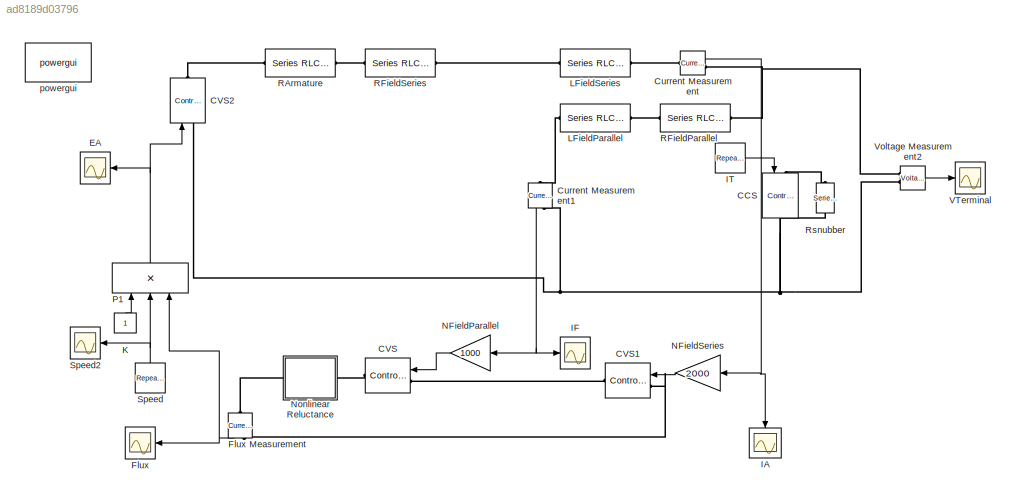
MODEL slx_ad8189d03796
KIND model
BLOCK [Reference] CCS  REF=powerlib/Electrical
Sources/Controlled Current Source
  Amplitude = 0
  Frequency = 0
  Initialize = off
  Measurements = None
  Phase = 0
  Ports = [1, 0, 0, 0, 0, 1, 1]
  SourceBlock = powerlib/Electrical\nSources/Controlled Current Source
  SourceType = Controlled Current Source
  Source_Type = AC
BLOCK [Reference] CVS  REF=powerlib/Electrical
Sources/Controlled Voltage Source
  Amplitude = 50
  Frequency = 0
  Initialize = on
  Measurements = None
  Phase = 0
  Ports = [1, 0, 0, 0, 0, 1, 1]
  SourceBlock = powerlib/Electrical\nSources/Controlled Voltage Source
  SourceType = Controlled Voltage Source
  Source_Type = DC
BLOCK [Reference] CVS1  REF=powerlib/Electrical
Sources/Controlled Voltage Source
  Amplitude = 50
  Frequency = 0
  Initialize = on
  Measurements = None
  Phase = 0
  Ports = [1, 0, 0, 0, 0, 1, 1]
  SourceBlock = powerlib/Electrical\nSources/Controlled Voltage Source
  SourceType = Controlled Voltage Source
  Source_Type = DC
BLOCK [Reference] CVS2  REF=powerlib/Electrical
Sources/Controlled Voltage Source
  Amplitude = 50
  Frequency = 0
  Initialize = on
  Measurements = None
  Phase = 0
  Ports = [1, 0, 0, 0, 0, 1, 1]
  SourceBlock = powerlib/Electrical\nSources/Controlled Voltage Source
  SourceType = Controlled Voltage Source
  Source_Type = DC
BLOCK [Reference] Current Measurement  REF=powerlib/Measurements/Current Measurement
  OutputType = Complex
  PSBequivalent = 0
  PhasorSimulation = off
  Ports = [0, 1, 0, 0, 0, 1, 1]
  SourceBlock = powerlib/Measurements/Current Measurement
  SourceType = Current Measurement
BLOCK [Reference] Current Measurement1  REF=powerlib/Measurements/Current Measurement
  OutputType = Complex
  PSBequivalent = 0
  PhasorSimulation = off
  Ports = [0, 1, 0, 0, 0, 1, 1]
  SourceBlock = powerlib/Measurements/Current Measurement
  SourceType = Current Measurement
BLOCK [Scope] EA
  DataFormat = StructureWithTime
  Floating = off
  LimitDataPoints = off
  NumInputPorts = 1
  Ports = [1]
  SampleTime = 0
  SaveName = EA
  SaveToWorkspace = on
  ShowLegends = off
  YMax = 0.0103584
  YMin = 0.00937187
  ZoomMode = xonly
BLOCK [Scope] Flux
  DataFormat = StructureWithTime
  Floating = off
  LimitDataPoints = off
  NumInputPorts = 1
  Ports = [1]
  SampleTime = 0
  SaveName = ScopeData3
  ShowLegends = off
  YMax = 5.48063e-06
  YMin = 5.48063e-06
  ZoomMode = xonly
BLOCK [Reference] Flux Measurement  REF=powerlib/Measurements/Current Measurement
  OutputType = Complex
  PSBequivalent = 0
  PhasorSimulation = off
  Ports = [0, 1, 0, 0, 0, 1, 1]
  SourceBlock = powerlib/Measurements/Current Measurement
  SourceType = Current Measurement
BLOCK [Scope] IA
  DataFormat = StructureWithTime
  Floating = off
  LimitDataPoints = off
  NumInputPorts = 1
  Ports = [1]
  SampleTime = 0
  SaveName = IA
  SaveToWorkspace = on
  ShowLegends = off
  YMax = 10
  YMin = 0
BLOCK [Scope] IF
  DataFormat = StructureWithTime
  Floating = off
  LimitDataPoints = off
  NumInputPorts = 1
  Ports = [1]
  SampleTime = 0
  SaveName = IF
  SaveToWorkspace = on
  ShowLegends = off
  YMax = 20
  YMin = 0
BLOCK [Reference] IT  REF=simulink/Sources/Repeating
Sequence
Stair
  ConRadixGroup = Best Precision: Vector-wise
  LockScale = off
  OutDataType = fixdt(0,8)
  OutDataTypeStr = double
  OutMax = []
  OutMin = []
  OutScaling = 2^-12
  OutValues = [0:0].'
  OutputDataTypeScalingMode = double
  Ports = [0, 1]
  SourceBlock = simulink/Sources/Repeating\nSequence\nStair
  SourceType = Repeating Sequence Stair
  tsamp = 0.01
BLOCK [Constant] K
BLOCK [Reference] LFieldParallel  REF=powerlib/Elements/Series RLC Branch
  BranchType = L
  Capacitance = 1e-6
  Inductance = 1e-3
  InitialCurrent = 1
  InitialVoltage = 0
  LConnTagsString = __new0
  Measurements = None
  Ports = [0, 0, 0, 0, 0, 1, 1]
  RConnTagsString = __new0
  Resistance = 30
  SetiL0 = on
  Setx0 = off
  SourceBlock = powerlib/Elements/Series RLC Branch
  SourceType = Series RLC Branch
BLOCK [Reference] LFieldSeries  REF=powerlib/Elements/Series RLC Branch
  BranchType = L
  Capacitance = 1e-6
  Inductance = 1e-3
  InitialCurrent = 1
  InitialVoltage = 0
  LConnTagsString = __new0
  Measurements = None
  Ports = [0, 0, 0, 0, 0, 1, 1]
  RConnTagsString = __new0
  Resistance = 0.02
  SetiL0 = on
  Setx0 = off
  SourceBlock = powerlib/Elements/Series RLC Branch
  SourceType = Series RLC Branch
BLOCK [Gain] NFieldParallel
  Gain = 1000
  OutDataTypeStr = Inherit: Inherit via internal rule
  ParamDataTypeStr = Inherit: Inherit via internal rule
  SaturateOnIntegerOverflow = off
BLOCK [Gain] NFieldSeries
  Gain = 2000
  OutDataTypeStr = Inherit: Inherit via internal rule
  ParamDataTypeStr = Inherit: Inherit via internal rule
  SaturateOnIntegerOverflow = off
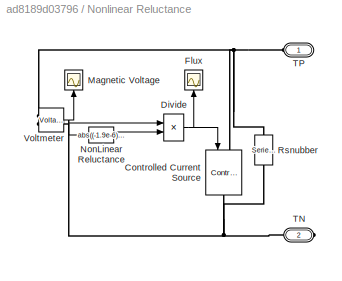
BLOCK [SubSystem] Nonlinear Reluctance
  FunctionWithSeparateData = off
  MaskHideContents = off
  MinAlgLoopOccurrences = off
  Opaque = off
  Ports = [0, 0, 0, 0, 0, 1, 1]
  PropExecContextOutsideSubsystem = off
  RTWSystemCode = Auto
  RequestExecContextInheritance = off
BLOCK [Reference] Nonlinear Reluctance/Controlled Current Source  REF=powerlib/Electrical
Sources/Controlled Current Source
  Amplitude = 0
  Frequency = 0
  Initialize = on
  Measurements = None
  Phase = 0
  Ports = [1, 0, 0, 0, 0, 1, 1]
  SourceBlock = powerlib/Electrical\nSources/Controlled Current Source
  SourceType = Controlled Current Source
  Source_Type = AC
BLOCK [Product] Nonlinear Reluctance/Divide
  InputSameDT = off
  Inputs = */
  OutDataTypeStr = Inherit: Inherit via internal rule
  Ports = [2, 1]
  RndMeth = Floor
  SaturateOnIntegerOverflow = off
BLOCK [Scope] Nonlinear Reluctance/Flux
  DataFormat = StructureWithTime
  Floating = off
  LimitDataPoints = off
  NumInputPorts = 1
  Ports = [1]
  SampleTime = 0
  SaveName = PermeanceFlux
  SaveToWorkspace = on
  ShowLegends = off
  YMax = 8.5e-06
  YMin = 2.75e-06
  ZoomMode = xonly
BLOCK [Scope] Nonlinear Reluctance/Magnetic Voltage
  DataFormat = StructureWithTime
  Floating = off
  LimitDataPoints = off
  NumInputPorts = 1
  Ports = [1]
  SampleTime = 0
  SaveName = PermeanceVm
  SaveToWorkspace = on
  ShowLegends = off
  YMax = 10000
  YMin = 0
  ZoomMode = yonly
BLOCK [Fcn] Nonlinear Reluctance/NonLinear Reluctance
  Expr = abs((-1.9e-6)*u(1)*u(1)*u(1)+0.024*u(1)*u(1)-30*u(1)+4.8e4)
BLOCK [Reference] Nonlinear Reluctance/Rsnubber  REF=powerlib/Elements/Series RLC Branch
  BranchType = R
  Capacitance = 1e-6
  Inductance = 1e-3
  InitialCurrent = 0
  InitialVoltage = 0
  LConnTagsString = __new0
  Measurements = None
  Ports = [0, 0, 0, 0, 0, 1, 1]
  RConnTagsString = __new0
  Resistance = R
  SetiL0 = off
  Setx0 = off
  SourceBlock = powerlib/Elements/Series RLC Branch
  SourceType = Series RLC Branch
BLOCK [PMIOPort] Nonlinear Reluctance/TN
  Port = 2
  Side = Right
BLOCK [PMIOPort] Nonlinear Reluctance/TP
  Port = 1
  Side = Left
BLOCK [Reference] Nonlinear Reluctance/Voltmeter  REF=powerlib/Measurements/Voltage Measurement
  OutputType = Complex
  PSBequivalent = 0
  PhasorSimulation = off
  Ports = [0, 1, 0, 0, 0, 2]
  SourceBlock = powerlib/Measurements/Voltage Measurement
  SourceType = Voltage Measurement
BLOCK [Product] P1
  InputSameDT = off
  Inputs = 3
  OutDataTypeStr = Inherit: Inherit via internal rule
  Ports = [3, 1]
  RndMeth = Floor
  SaturateOnIntegerOverflow = off
BLOCK [Reference] RArmature  REF=powerlib/Elements/Series RLC Branch
  BranchType = R
  Capacitance = 1e-6
  Inductance = 1e-3
  InitialCurrent = 0
  InitialVoltage = 0
  LConnTagsString = __new0
  Measurements = None
  Ports = [0, 0, 0, 0, 0, 1, 1]
  RConnTagsString = __new0
  Resistance = 0.19
  SetiL0 = off
  Setx0 = off
  SourceBlock = powerlib/Elements/Series RLC Branch
  SourceType = Series RLC Branch
BLOCK [Reference] RFieldParallel  REF=powerlib/Elements/Series RLC Branch
  BranchType = R
  Capacitance = 1e-6
  Inductance = 1e-3
  InitialCurrent = 0
  InitialVoltage = 0
  LConnTagsString = __new0
  Measurements = None
  Ports = [0, 0, 0, 0, 0, 1, 1]
  RConnTagsString = __new0
  Resistance = 20
  SetiL0 = off
  Setx0 = off
  SourceBlock = powerlib/Elements/Series RLC Branch
  SourceType = Series RLC Branch
BLOCK [Reference] RFieldSeries  REF=powerlib/Elements/Series RLC Branch
  BranchType = R
  Capacitance = 1e-6
  Inductance = 1e-3
  InitialCurrent = 0
  InitialVoltage = 0
  LConnTagsString = __new0
  Measurements = None
  Ports = [0, 0, 0, 0, 0, 1, 1]
  RConnTagsString = __new0
  Resistance = 0.02
  SetiL0 = off
  Setx0 = off
  SourceBlock = powerlib/Elements/Series RLC Branch
  SourceType = Series RLC Branch
BLOCK [Reference] Rsnubber  REF=powerlib/Elements/Series RLC Branch
  BranchType = R
  Capacitance = 1e-6
  Inductance = 1e-3
  InitialCurrent = 0
  InitialVoltage = 0
  LConnTagsString = __new0
  Measurements = None
  Ports = [0, 0, 0, 0, 0, 1, 1]
  RConnTagsString = __new0
  Resistance = 1e9
  SetiL0 = off
  Setx0 = off
  SourceBlock = powerlib/Elements/Series RLC Branch
  SourceType = Series RLC Branch
BLOCK [Reference] Speed  REF=simulink/Sources/Repeating
Sequence
Stair
  ConRadixGroup = Best Precision: Vector-wise
  LockScale = off
  OutDataType = fixdt(0,8)
  OutDataTypeStr = double
  OutMax = []
  OutMin = []
  OutScaling = 2^-12
  OutValues = [1000:250:2500].'
  OutputDataTypeScalingMode = double
  Ports = [0, 1]
  SourceBlock = simulink/Sources/Repeating\nSequence\nStair
  SourceType = Repeating Sequence Stair
  tsamp = 0.01
BLOCK [Scope] Speed2
  DataFormat = StructureWithTime
  Floating = off
  LimitDataPoints = off
  NumInputPorts = 1
  Ports = [1]
  SampleTime = 0
  SaveName = RotorSpeed
  SaveToWorkspace = on
  ShowLegends = off
  YMax = 1750
  YMin = 1750
  ZoomMode = xonly
BLOCK [Scope] VTerminal
  DataFormat = StructureWithTime
  Floating = off
  LimitDataPoints = off
  NumInputPorts = 1
  Ports = [1]
  SampleTime = 0
  SaveName = VT
  SaveToWorkspace = on
  ShowLegends = off
  YMax = 150
  YMin = 0
  ZoomMode = xonly
BLOCK [Reference] Voltage Measurement2  REF=powerlib/Measurements/Voltage Measurement
  OutputType = Complex
  PSBequivalent = 0
  PhasorSimulation = off
  Ports = [0, 1, 0, 0, 0, 2]
  SourceBlock = powerlib/Measurements/Voltage Measurement
  SourceType = Voltage Measurement
BLOCK [Reference] powergui  REF=powerlib/powergui
  DisableRonSwitches = off
  DisableSnubberDevices = off
  DisableVfSwitches = off
  DisplayEquations = off
  DisplayStyle = 1
  EnableUseOfTLC = off
  ErrMax = 1e-4
  Frange = [0:2:500]
  FreqAxis = off
  FunctionMessages = off
  HookPort = off
  Interpol = off
  Iterations = 50
  MaxFrequency = 1000
  Pbase = 100e6
  Ports = []
  Priority = 1
  ResistiveCurrentMeasurement = off
  RestoreLinks = warning
  RmsSteady = 1
  SPID = off
  SampleTime = 1e-7
  ShowGrid = off
  SolverType = Backward Euler
  SourceBlock = powerlib/powergui
  SourceType = PSB option menu block
  StartTime = 0.0
  SwTol = 0
  Ts = 0
  UnitsV = kV
  UnitsW = MW
  UserDataPersistent = on
  Xlog = on
  Ylog = off
  ZoomFFT = off
  cycles = 1
  display = off
  echomessages = off
  frequency = 60
  frequencyindice = 0
  frequencyindicesteady = 1
  fundamental = 60
  methode = off
  save = off
  variable = ZData
  x0status = steady
NET Current Measurement1:1 -> IF:1, NFieldParallel:1
NET Current Measurement:1 -> IA:1, NFieldSeries:1
NET Flux Measurement:1 -> Flux:1, P1:3
LINE IT:1 -> CCS:1
LINE K:1 -> P1:1
LINE NFieldParallel:1 -> CVS:1
LINE NFieldSeries:1 -> CVS1:1
NET Nonlinear Reluctance/Divide:1 -> Nonlinear Reluctance/Controlled Current Source:1, Nonlinear Reluctance/Flux:1
LINE Nonlinear Reluctance/NonLinear Reluctance:1 -> Nonlinear Reluctance/Divide:2
NET Nonlinear Reluctance/Voltmeter:1 -> Nonlinear Reluctance/Divide:1, Nonlinear Reluctance/Magnetic Voltage:1, Nonlinear Reluctance/NonLinear Reluctance:1
NET P1:1 -> CVS2:1, EA:1
NET Speed:1 -> P1:2, Speed2:1
LINE Voltage Measurement2:1 -> VTerminal:1
PLINE CCS:LConn1 -- Rsnubber:LConn1
PNET net1: CCS:RConn1 -- CVS2:LConn1 -- Current Measurement1:RConn1 -- Rsnubber:RConn1 -- Voltage Measurement2:LConn2
PLINE CVS1:LConn1 -- Flux Measurement:RConn1
PLINE CVS1:RConn1 -- CVS:LConn1
PLINE CVS2:RConn1 -- RArmature:LConn1
PLINE CVS:RConn1 -- Nonlinear Reluctance:LConn1
PLINE Current Measurement1:LConn1 -- LFieldParallel:RConn1
PLINE Current Measurement:LConn1 -- LFieldSeries:RConn1
PNET net2: Current Measurement:RConn1 -- RFieldParallel:LConn1 -- Voltage Measurement2:LConn1
PLINE Flux Measurement:LConn1 -- Nonlinear Reluctance:RConn1
PLINE LFieldParallel:LConn1 -- RFieldParallel:RConn1
PLINE LFieldSeries:LConn1 -- RFieldSeries:RConn1
PNET net3: Nonlinear Reluctance/Controlled Current Source:LConn1 -- Nonlinear Reluctance/Rsnubber:LConn1 -- Nonlinear Reluctance/TP:RConn1 -- Nonlinear Reluctance/Voltmeter:LConn1
PNET net4: Nonlinear Reluctance/Controlled Current Source:RConn1 -- Nonlinear Reluctance/Rsnubber:RConn1 -- Nonlinear Reluctance/TN:RConn1 -- Nonlinear Reluctance/Voltmeter:LConn2
PLINE RArmature:RConn1 -- RFieldSeries:LConn1
note: NET lines group one-source signal fan-out (src -> all destinations, sorted); 1:1 wires keep LINE; PNET lines group multi-terminal physical nets as a canonical sorted terminal list (undirected conserving connections); 2-terminal nets keep the pairwise PLINE form
